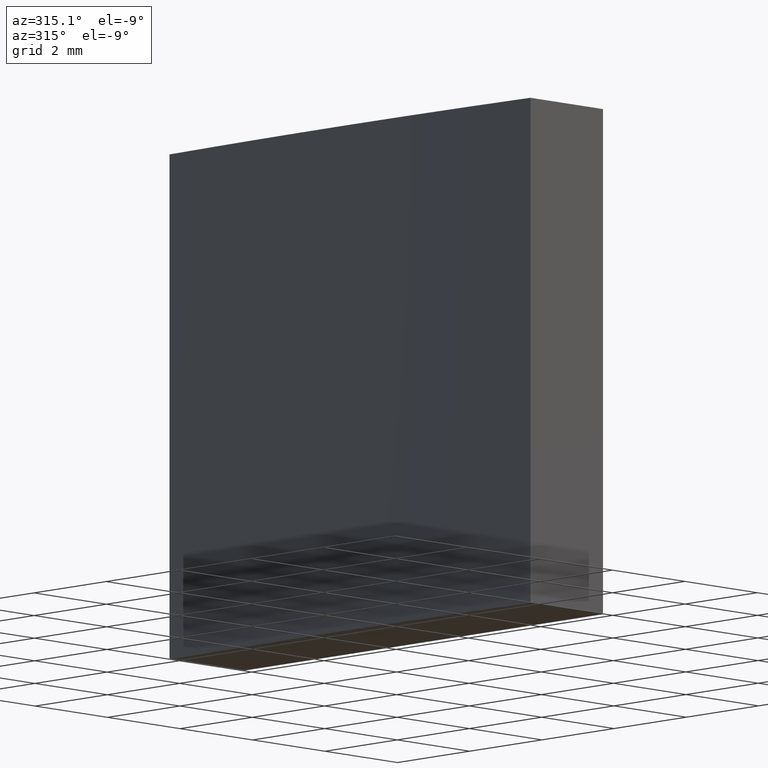
[diagram: clean part render]
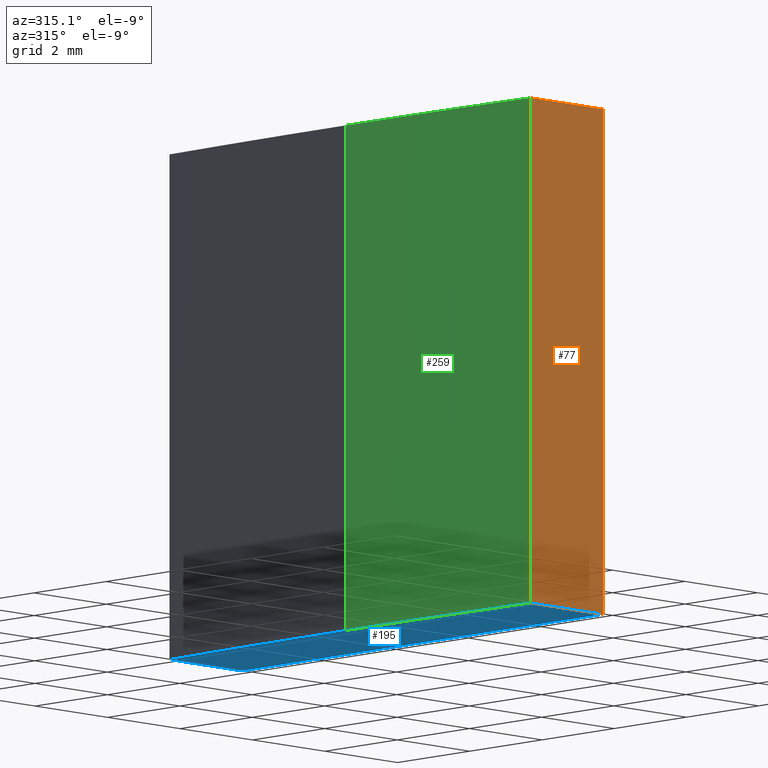
[diagram: same view with three faces highlighted in distinct colors, each labeled with its STEP entity id]
A machine part, auxiliary view with three faces highlighted in distinct colors.
Their STEP definitions:

[orange] entity #77 — the highlighted planar face has unit normal (0, 1, 0).
#3 = VERTEX_POINT ( 'NONE', #7 ) ;
#7 = CARTESIAN_POINT ( 'NONE',  ( -101.2790394997939529, -5.000000000000000888, 0.000000000000000000 ) ) ;
#29 = PLANE ( 'NONE',  #256 ) ;
#36 = DIRECTION ( 'NONE',  ( 0.000000000000000000, -0.000000000000000000, 1.000000000000000000 ) ) ;
#37 = ORIENTED_EDGE ( 'NONE', *, *, #59, .T. ) ;
#39 = LINE ( 'NONE', #252, #198 ) ;
#41 = EDGE_CURVE ( 'NONE', #57, #3, #199, .T. ) ;
#57 = VERTEX_POINT ( 'NONE', #225 ) ;
#59 = EDGE_CURVE ( 'NONE', #117, #3, #204, .T. ) ;
#62 = CARTESIAN_POINT ( 'NONE',  ( -103.2790394997939529, -5.000000000000000888, 10.00000000000000000 ) ) ;
#64 = DIRECTION ( 'NONE',  ( -0.000000000000000000, -0.000000000000000000, -1.000000000000000000 ) ) ;
#72 = FACE_OUTER_BOUND ( 'NONE', #73, .T. ) ;
#73 = EDGE_LOOP ( 'NONE', ( #37, #97, #248, #152 ) ) ;
#77 = ADVANCED_FACE ( 'NONE', ( #72 ), #29, .F. ) ;
#90 = CARTESIAN_POINT ( 'NONE',  ( -103.2790394997939529, -5.000000000000000888, 10.00000000000000000 ) ) ;
#97 = ORIENTED_EDGE ( 'NONE', *, *, #41, .F. ) ;
#107 = CARTESIAN_POINT ( 'NONE',  ( -103.2790394997939529, -5.000000000000000888, 0.000000000000000000 ) ) ;
#110 = VECTOR ( 'NONE', #273, 1000.000000000000000 ) ;
#117 = VERTEX_POINT ( 'NONE', #172 ) ;
#128 = VECTOR ( 'NONE', #223, 1000.000000000000000 ) ;
#130 = EDGE_CURVE ( 'NONE', #134, #57, #258, .T. ) ;
#134 = VERTEX_POINT ( 'NONE', #62 ) ;
#152 = ORIENTED_EDGE ( 'NONE', *, *, #251, .T. ) ;
#172 = CARTESIAN_POINT ( 'NONE',  ( -103.2790394997939529, -5.000000000000000888, 0.000000000000000000 ) ) ;
#179 = CARTESIAN_POINT ( 'NONE',  ( -101.2790394997939529, -5.000000000000000888, 10.00000000000000000 ) ) ;
#194 = DIRECTION ( 'NONE',  ( 0.000000000000000000, 1.000000000000000000, 0.000000000000000000 ) ) ;
#198 = VECTOR ( 'NONE', #64, 1000.000000000000000 ) ;
#199 = LINE ( 'NONE', #179, #210 ) ;
#204 = LINE ( 'NONE', #107, #110 ) ;
#210 = VECTOR ( 'NONE', #250, 1000.000000000000000 ) ;
#223 = DIRECTION ( 'NONE',  ( 1.000000000000000000, 0.000000000000000000, 0.000000000000000000 ) ) ;
#225 = CARTESIAN_POINT ( 'NONE',  ( -101.2790394997939529, -5.000000000000000888, 10.00000000000000000 ) ) ;
#248 = ORIENTED_EDGE ( 'NONE', *, *, #130, .F. ) ;
#250 = DIRECTION ( 'NONE',  ( -0.000000000000000000, -0.000000000000000000, -1.000000000000000000 ) ) ;
#251 = EDGE_CURVE ( 'NONE', #134, #117, #39, .T. ) ;
#252 = CARTESIAN_POINT ( 'NONE',  ( -103.2790394997939529, -5.000000000000000888, 10.00000000000000000 ) ) ;
#256 = AXIS2_PLACEMENT_3D ( 'NONE', #267, #194, #36 ) ;
#258 = LINE ( 'NONE', #90, #128 ) ;
#267 = CARTESIAN_POINT ( 'NONE',  ( -103.2790394997939529, -5.000000000000000888, 10.00000000000000000 ) ) ;
#273 = DIRECTION ( 'NONE',  ( 1.000000000000000000, 0.000000000000000000, 0.000000000000000000 ) ) ;

[blue] entity #195 — the highlighted planar face has unit normal (0, 0, 1).
#3 = VERTEX_POINT ( 'NONE', #7 ) ;
#7 = CARTESIAN_POINT ( 'NONE',  ( -101.2790394997939529, -5.000000000000000888, 0.000000000000000000 ) ) ;
#8 = AXIS2_PLACEMENT_3D ( 'NONE', #268, #106, #17 ) ;
#12 = ORIENTED_EDGE ( 'NONE', *, *, #160, .F. ) ;
#16 = FACE_OUTER_BOUND ( 'NONE', #70, .T. ) ;
#17 = DIRECTION ( 'NONE',  ( 1.000000000000000000, 0.000000000000000000, 0.000000000000000000 ) ) ;
#19 = LINE ( 'NONE', #163, #231 ) ;
#27 = VERTEX_POINT ( 'NONE', #222 ) ;
#45 = AXIS2_PLACEMENT_3D ( 'NONE', #60, #203, #178 ) ;
#59 = EDGE_CURVE ( 'NONE', #117, #3, #204, .T. ) ;
#60 = CARTESIAN_POINT ( 'NONE',  ( 0.000000000000000000, 0.000000000000000000, 0.000000000000000000 ) ) ;
#70 = EDGE_LOOP ( 'NONE', ( #12, #162, #81, #193, #240 ) ) ;
#74 = VERTEX_POINT ( 'NONE', #155 ) ;
#81 = ORIENTED_EDGE ( 'NONE', *, *, #131, .F. ) ;
#86 = DIRECTION ( 'NONE',  ( -0.000000000000000000, 1.000000000000000000, -0.000000000000000000 ) ) ;
#101 = AXIS2_PLACEMENT_3D ( 'NONE', #269, #219, #197 ) ;
#102 = CARTESIAN_POINT ( 'NONE',  ( -103.4000000000000057, 0.000000000000000000, 0.000000000000000000 ) ) ;
#103 = DIRECTION ( 'NONE',  ( -1.000000000000000000, -0.000000000000000000, -0.000000000000000000 ) ) ;
#106 = DIRECTION ( 'NONE',  ( 0.000000000000000000, 0.000000000000000000, 1.000000000000000000 ) ) ;
#107 = CARTESIAN_POINT ( 'NONE',  ( -103.2790394997939529, -5.000000000000000888, 0.000000000000000000 ) ) ;
#110 = VECTOR ( 'NONE', #273, 1000.000000000000000 ) ;
#117 = VERTEX_POINT ( 'NONE', #172 ) ;
#131 = EDGE_CURVE ( 'NONE', #3, #27, #270, .T. ) ;
#136 = CIRCLE ( 'NONE', #8, 103.4000000000000057 ) ;
#140 = CARTESIAN_POINT ( 'NONE',  ( -101.2790394997939529, 5.000000000000000888, 0.000000000000000000 ) ) ;
#144 = VECTOR ( 'NONE', #86, 1000.000000000000000 ) ;
#155 = CARTESIAN_POINT ( 'NONE',  ( -103.2790394997939529, 5.000000000000000888, 0.000000000000000000 ) ) ;
#160 = EDGE_CURVE ( 'NONE', #74, #186, #136, .T. ) ;
#162 = ORIENTED_EDGE ( 'NONE', *, *, #235, .F. ) ;
#163 = CARTESIAN_POINT ( 'NONE',  ( -103.2790394997939529, 5.000000000000000888, 0.000000000000000000 ) ) ;
#169 = CIRCLE ( 'NONE', #45, 103.4000000000000057 ) ;
#172 = CARTESIAN_POINT ( 'NONE',  ( -103.2790394997939529, -5.000000000000000888, 0.000000000000000000 ) ) ;
#178 = DIRECTION ( 'NONE',  ( 1.000000000000000000, 0.000000000000000000, 0.000000000000000000 ) ) ;
#182 = PLANE ( 'NONE',  #101 ) ;
#186 = VERTEX_POINT ( 'NONE', #102 ) ;
#193 = ORIENTED_EDGE ( 'NONE', *, *, #59, .F. ) ;
#195 = ADVANCED_FACE ( 'NONE', ( #16 ), #182, .F. ) ;
#197 = DIRECTION ( 'NONE',  ( 1.000000000000000000, 0.000000000000000000, -0.000000000000000000 ) ) ;
#203 = DIRECTION ( 'NONE',  ( 0.000000000000000000, 0.000000000000000000, 1.000000000000000000 ) ) ;
#204 = LINE ( 'NONE', #107, #110 ) ;
#207 = EDGE_CURVE ( 'NONE', #186, #117, #169, .T. ) ;
#219 = DIRECTION ( 'NONE',  ( 0.000000000000000000, 0.000000000000000000, 1.000000000000000000 ) ) ;
#222 = CARTESIAN_POINT ( 'NONE',  ( -101.2790394997939529, 5.000000000000000888, 0.000000000000000000 ) ) ;
#231 = VECTOR ( 'NONE', #103, 1000.000000000000000 ) ;
#235 = EDGE_CURVE ( 'NONE', #27, #74, #19, .T. ) ;
#240 = ORIENTED_EDGE ( 'NONE', *, *, #207, .F. ) ;
#268 = CARTESIAN_POINT ( 'NONE',  ( 0.000000000000000000, 0.000000000000000000, 0.000000000000000000 ) ) ;
#269 = CARTESIAN_POINT ( 'NONE',  ( 0.000000000000000000, 0.000000000000000000, 0.000000000000000000 ) ) ;
#270 = LINE ( 'NONE', #140, #144 ) ;
#273 = DIRECTION ( 'NONE',  ( 1.000000000000000000, 0.000000000000000000, 0.000000000000000000 ) ) ;

[green] entity #259 — the highlighted cylindrical surface (partial cylindrical patch) has radius 103.4 mm, axis along (-0, -0, -1).
#22 = EDGE_CURVE ( 'NONE', #153, #134, #55, .T. ) ;
#24 = EDGE_CURVE ( 'NONE', #153, #186, #138, .T. ) ;
#31 = AXIS2_PLACEMENT_3D ( 'NONE', #124, #63, #126 ) ;
#34 = ORIENTED_EDGE ( 'NONE', *, *, #251, .F. ) ;
#39 = LINE ( 'NONE', #252, #198 ) ;
#43 = AXIS2_PLACEMENT_3D ( 'NONE', #125, #205, #79 ) ;
#45 = AXIS2_PLACEMENT_3D ( 'NONE', #60, #203, #178 ) ;
#55 = CIRCLE ( 'NONE', #31, 103.4000000000000057 ) ;
#60 = CARTESIAN_POINT ( 'NONE',  ( 0.000000000000000000, 0.000000000000000000, 0.000000000000000000 ) ) ;
#62 = CARTESIAN_POINT ( 'NONE',  ( -103.2790394997939529, -5.000000000000000888, 10.00000000000000000 ) ) ;
#63 = DIRECTION ( 'NONE',  ( 0.000000000000000000, 0.000000000000000000, 1.000000000000000000 ) ) ;
#64 = DIRECTION ( 'NONE',  ( -0.000000000000000000, -0.000000000000000000, -1.000000000000000000 ) ) ;
#79 = DIRECTION ( 'NONE',  ( -1.000000000000000000, 0.000000000000000000, 0.000000000000000000 ) ) ;
#83 = EDGE_LOOP ( 'NONE', ( #105, #218, #209, #34 ) ) ;
#102 = CARTESIAN_POINT ( 'NONE',  ( -103.4000000000000057, 0.000000000000000000, 0.000000000000000000 ) ) ;
#105 = ORIENTED_EDGE ( 'NONE', *, *, #22, .F. ) ;
#117 = VERTEX_POINT ( 'NONE', #172 ) ;
#119 = CARTESIAN_POINT ( 'NONE',  ( -103.4000000000000057, 0.000000000000000000, 10.00000000000000000 ) ) ;
#122 = DIRECTION ( 'NONE',  ( -0.000000000000000000, -0.000000000000000000, -1.000000000000000000 ) ) ;
#124 = CARTESIAN_POINT ( 'NONE',  ( 0.000000000000000000, 0.000000000000000000, 10.00000000000000000 ) ) ;
#125 = CARTESIAN_POINT ( 'NONE',  ( 0.000000000000000000, 0.000000000000000000, 10.00000000000000000 ) ) ;
#126 = DIRECTION ( 'NONE',  ( 1.000000000000000000, 0.000000000000000000, 0.000000000000000000 ) ) ;
#134 = VERTEX_POINT ( 'NONE', #62 ) ;
#138 = LINE ( 'NONE', #119, #265 ) ;
#142 = CARTESIAN_POINT ( 'NONE',  ( -103.4000000000000057, 0.000000000000000000, 10.00000000000000000 ) ) ;
#143 = CYLINDRICAL_SURFACE ( 'NONE', #43, 103.4000000000000057 ) ;
#153 = VERTEX_POINT ( 'NONE', #142 ) ;
#169 = CIRCLE ( 'NONE', #45, 103.4000000000000057 ) ;
#172 = CARTESIAN_POINT ( 'NONE',  ( -103.2790394997939529, -5.000000000000000888, 0.000000000000000000 ) ) ;
#178 = DIRECTION ( 'NONE',  ( 1.000000000000000000, 0.000000000000000000, 0.000000000000000000 ) ) ;
#186 = VERTEX_POINT ( 'NONE', #102 ) ;
#198 = VECTOR ( 'NONE', #64, 1000.000000000000000 ) ;
#203 = DIRECTION ( 'NONE',  ( 0.000000000000000000, 0.000000000000000000, 1.000000000000000000 ) ) ;
#205 = DIRECTION ( 'NONE',  ( -0.000000000000000000, -0.000000000000000000, -1.000000000000000000 ) ) ;
#207 = EDGE_CURVE ( 'NONE', #186, #117, #169, .T. ) ;
#209 = ORIENTED_EDGE ( 'NONE', *, *, #207, .T. ) ;
#218 = ORIENTED_EDGE ( 'NONE', *, *, #24, .T. ) ;
#251 = EDGE_CURVE ( 'NONE', #134, #117, #39, .T. ) ;
#252 = CARTESIAN_POINT ( 'NONE',  ( -103.2790394997939529, -5.000000000000000888, 10.00000000000000000 ) ) ;
#259 = ADVANCED_FACE ( 'NONE', ( #271 ), #143, .T. ) ;
#265 = VECTOR ( 'NONE', #122, 1000.000000000000000 ) ;
#271 = FACE_OUTER_BOUND ( 'NONE', #83, .T. ) ;